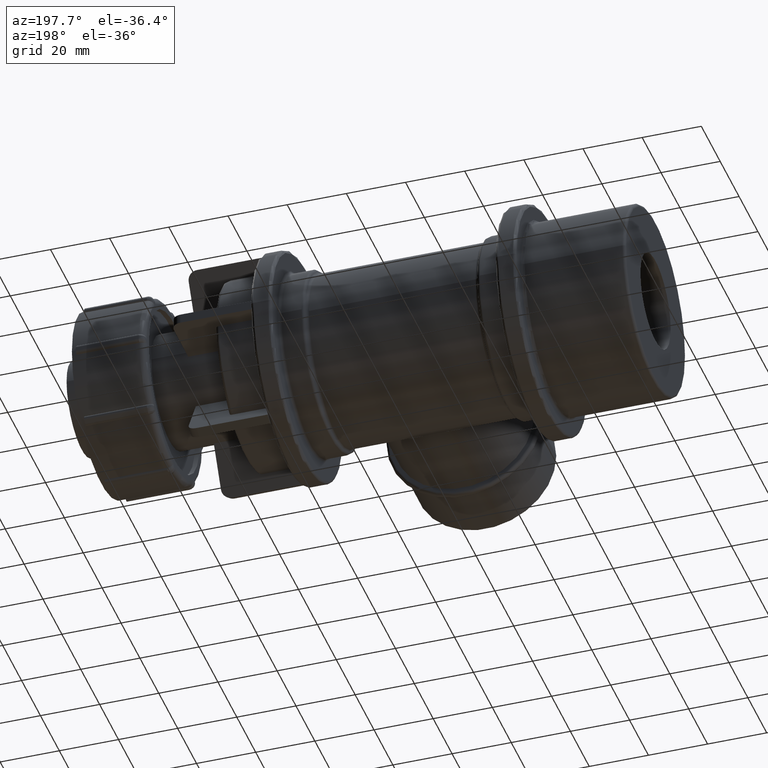
[diagram: clean part render]
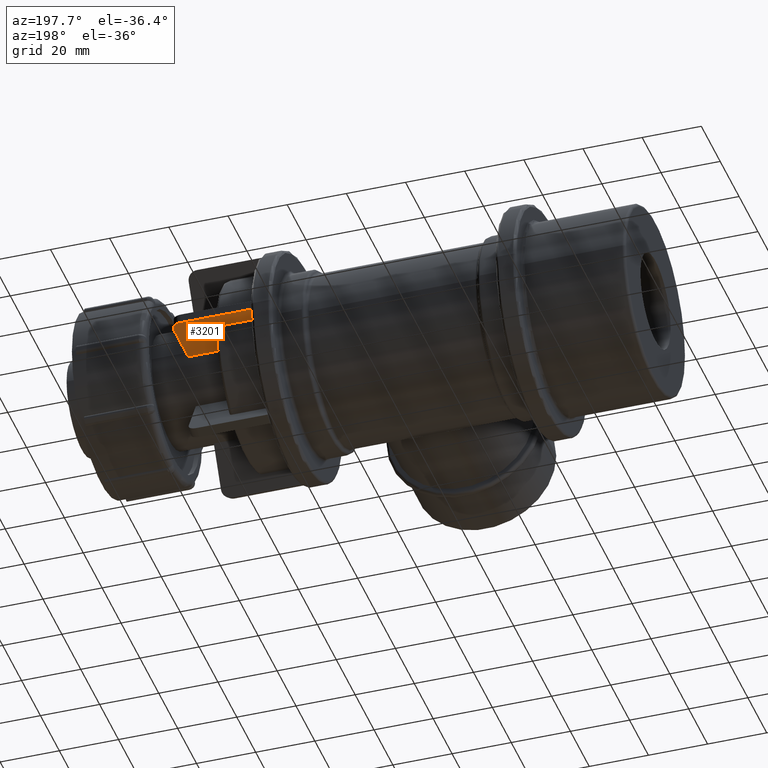
[diagram: same view with one face highlighted and labeled with its STEP entity id]
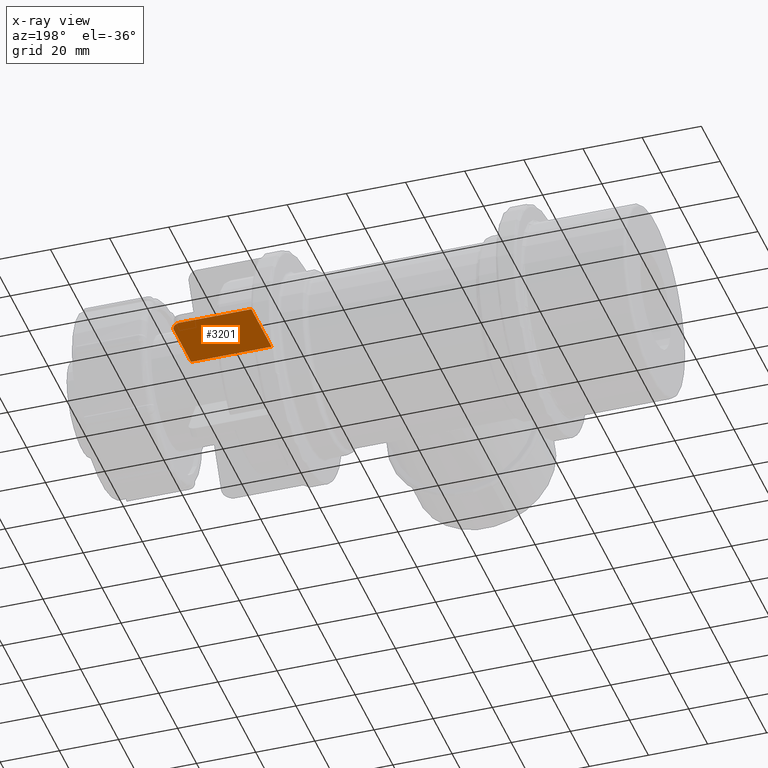
[diagram: x-ray of the same camera — body ghosted, the highlighted face saturated]
A machine part, auxiliary view. The second image highlights one B-rep face of the part: STEP entity #3201.
The next image is the same camera in x-ray: the body ghosted, the highlighted face saturated — about 0% of this face is hidden behind the body in this view.
In plain terms, the highlighted planar face has unit normal (0, 0, -1).
Its self-contained STEP definition (entity closure, byte-faithful):
#200=LINE('',#6111,#382);
#203=LINE('',#6117,#385);
#204=LINE('',#6119,#386);
#205=LINE('',#6120,#387);
#382=VECTOR('',#4495,24.03);
#385=VECTOR('',#4500,18.2);
#386=VECTOR('',#4501,27.23);
#387=VECTOR('',#4502,21.4);
#503=PLANE('',#3583);
#703=CIRCLE('',#3581,3.2);
#994=FACE_OUTER_BOUND('',#1255,.T.);
#1255=EDGE_LOOP('',(#2892,#2893,#2894,#2895,#2896));
#1609=VERTEX_POINT('',#6104);
#1610=VERTEX_POINT('',#6106);
#1611=VERTEX_POINT('',#6110);
#1613=VERTEX_POINT('',#6116);
#1614=VERTEX_POINT('',#6118);
#2040=EDGE_CURVE('',#1609,#1610,#703,.T.);
#2042=EDGE_CURVE('',#1611,#1610,#200,.T.);
#2045=EDGE_CURVE('',#1609,#1613,#203,.T.);
#2046=EDGE_CURVE('',#1613,#1614,#204,.T.);
#2047=EDGE_CURVE('',#1614,#1611,#205,.T.);
#2892=ORIENTED_EDGE('',*,*,#2040,.F.);
#2893=ORIENTED_EDGE('',*,*,#2045,.T.);
#2894=ORIENTED_EDGE('',*,*,#2046,.T.);
#2895=ORIENTED_EDGE('',*,*,#2047,.T.);
#2896=ORIENTED_EDGE('',*,*,#2042,.T.);
#3201=ADVANCED_FACE('',(#994),#503,.T.);
#3581=AXIS2_PLACEMENT_3D('',#6107,#4490,#4491);
#3583=AXIS2_PLACEMENT_3D('',#6115,#4498,#4499);
#4490=DIRECTION('center_axis',(0.,0.,1.));
#4491=DIRECTION('ref_axis',(0.707106781186548,0.707106781186548,0.));
#4495=DIRECTION('',(1.,-1.63088215148756E-16,0.));
#4498=DIRECTION('center_axis',(0.,0.,-1.));
#4499=DIRECTION('ref_axis',(-1.,0.,0.));
#4500=DIRECTION('',(0.,-1.,0.));
#4501=DIRECTION('',(-1.,-1.63088215148756E-16,0.));
#4502=DIRECTION('',(0.,1.,0.));
#6104=CARTESIAN_POINT('',(72.08,34.2,-1.6));
#6106=CARTESIAN_POINT('',(68.88,37.4,-1.6));
#6107=CARTESIAN_POINT('Origin',(68.88,34.2,-1.6));
#6110=CARTESIAN_POINT('',(44.85,37.4,-1.6));
#6111=CARTESIAN_POINT('',(72.08,37.4,-1.6));
#6115=CARTESIAN_POINT('Origin',(58.465,26.7,-1.6));
#6116=CARTESIAN_POINT('',(72.08,16.,-1.6));
#6117=CARTESIAN_POINT('',(72.08,19.2,-1.6));
#6118=CARTESIAN_POINT('',(44.85,16.,-1.6));
#6119=CARTESIAN_POINT('',(44.85,16.,-1.6));
#6120=CARTESIAN_POINT('',(44.85,37.4,-1.6));